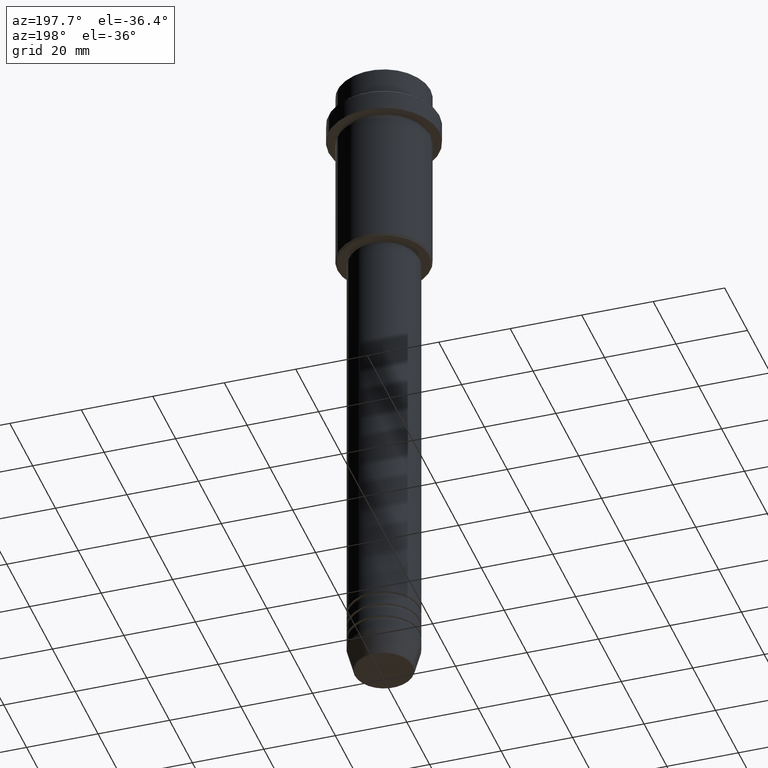
[diagram: clean part render]
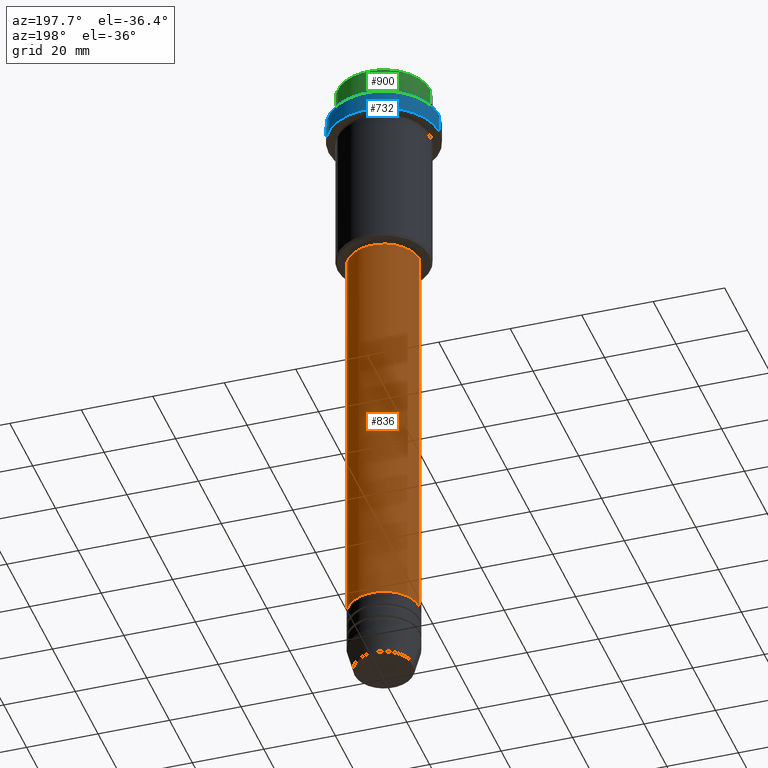
[diagram: same view with three faces highlighted in distinct colors, each labeled with its STEP entity id]
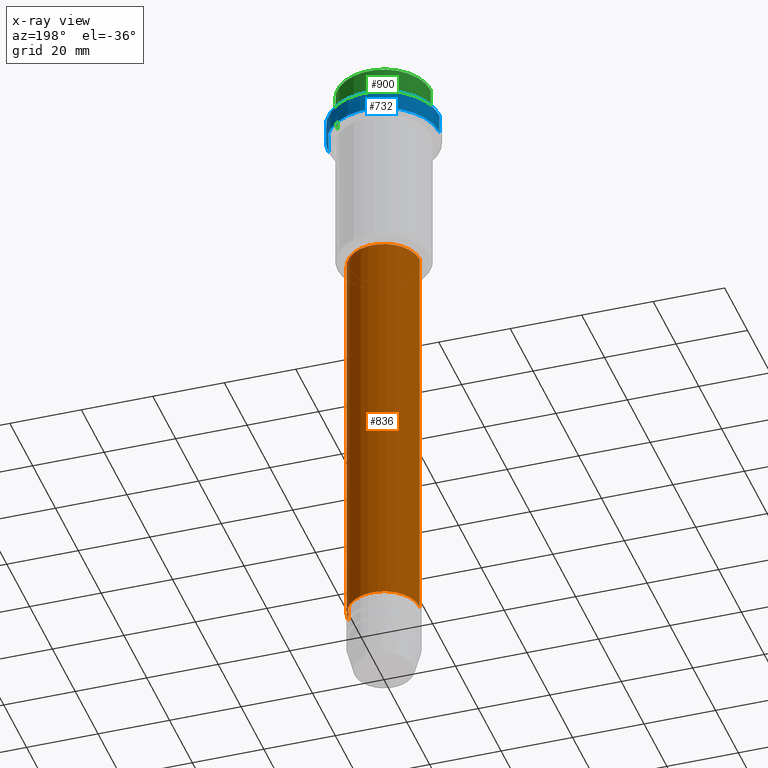
[diagram: x-ray of the same camera — body ghosted, the three highlighted faces saturated]
A machine part, auxiliary view with three faces highlighted in distinct colors.
The next image is the same camera in x-ray (body ghosted, the three faces saturated) — at least one of them is partly hidden behind the body in this view.
Their STEP definitions:

[orange] entity #836 — the highlighted cylindrical surface (partial cylindrical patch) has radius 10 mm, axis along (-0, -0, 1).
#87 = CARTESIAN_POINT ( 'NONE',  ( -10.00000000000000178, 1.224646799147353454E-15, 0.000000000000000000 ) ) ;
#165 = DIRECTION ( 'NONE',  ( -0.000000000000000000, -0.000000000000000000, 1.000000000000000000 ) ) ;
#176 = DIRECTION ( 'NONE',  ( -0.000000000000000000, -0.000000000000000000, 1.000000000000000000 ) ) ;
#210 = CARTESIAN_POINT ( 'NONE',  ( 0.000000000000000000, 0.000000000000000000, -55.99999999999999289 ) ) ;
#223 = CARTESIAN_POINT ( 'NONE',  ( 10.00000000000000178, 0.000000000000000000, 0.000000000000000000 ) ) ;
#224 = ORIENTED_EDGE ( 'NONE', *, *, #840, .T. ) ;
#234 = VERTEX_POINT ( 'NONE', #501 ) ;
#350 = VERTEX_POINT ( 'NONE', #1085 ) ;
#437 = EDGE_CURVE ( 'NONE', #1062, #234, #1139, .T. ) ;
#501 = CARTESIAN_POINT ( 'NONE',  ( -10.00000000000000000, 1.224646799147353256E-15, -170.9999999999998863 ) ) ;
#513 = VECTOR ( 'NONE', #769, 1000.000000000000000 ) ;
#531 = DIRECTION ( 'NONE',  ( -0.000000000000000000, -0.000000000000000000, 1.000000000000000000 ) ) ;
#546 = EDGE_CURVE ( 'NONE', #1062, #684, #1199, .T. ) ;
#632 = DIRECTION ( 'NONE',  ( 1.000000000000000000, 0.000000000000000000, 0.000000000000000000 ) ) ;
#642 = DIRECTION ( 'NONE',  ( -0.000000000000000000, -0.000000000000000000, 1.000000000000000000 ) ) ;
#656 = EDGE_LOOP ( 'NONE', ( #1023, #224, #1336, #1050 ) ) ;
#684 = VERTEX_POINT ( 'NONE', #921 ) ;
#710 = CARTESIAN_POINT ( 'NONE',  ( 0.000000000000000000, 0.000000000000000000, -170.9999999999998863 ) ) ;
#724 = CYLINDRICAL_SURFACE ( 'NONE', #964, 10.00000000000000178 ) ;
#741 = CARTESIAN_POINT ( 'NONE',  ( 0.000000000000000000, 0.000000000000000000, 0.000000000000000000 ) ) ;
#768 = CARTESIAN_POINT ( 'NONE',  ( 10.00000000000000000, 0.000000000000000000, -170.9999999999998863 ) ) ;
#769 = DIRECTION ( 'NONE',  ( -0.000000000000000000, -0.000000000000000000, 1.000000000000000000 ) ) ;
#836 = ADVANCED_FACE ( 'NONE', ( #867 ), #724, .T. ) ;
#840 = EDGE_CURVE ( 'NONE', #234, #350, #1375, .T. ) ;
#867 = FACE_OUTER_BOUND ( 'NONE', #656, .T. ) ;
#876 = CIRCLE ( 'NONE', #1395, 10.00000000000000178 ) ;
#921 = CARTESIAN_POINT ( 'NONE',  ( 10.00000000000000178, 0.000000000000000000, -55.99999999999999289 ) ) ;
#924 = EDGE_CURVE ( 'NONE', #684, #350, #876, .T. ) ;
#964 = AXIS2_PLACEMENT_3D ( 'NONE', #741, #531, #632 ) ;
#970 = DIRECTION ( 'NONE',  ( 1.000000000000000000, 0.000000000000000000, 0.000000000000000000 ) ) ;
#972 = DIRECTION ( 'NONE',  ( 1.000000000000000000, 0.000000000000000000, 0.000000000000000000 ) ) ;
#1023 = ORIENTED_EDGE ( 'NONE', *, *, #437, .T. ) ;
#1050 = ORIENTED_EDGE ( 'NONE', *, *, #546, .F. ) ;
#1062 = VERTEX_POINT ( 'NONE', #768 ) ;
#1085 = CARTESIAN_POINT ( 'NONE',  ( -10.00000000000000178, 1.224646799147353454E-15, -55.99999999999999289 ) ) ;
#1139 = CIRCLE ( 'NONE', #1279, 10.00000000000000000 ) ;
#1190 = VECTOR ( 'NONE', #176, 1000.000000000000000 ) ;
#1199 = LINE ( 'NONE', #223, #513 ) ;
#1279 = AXIS2_PLACEMENT_3D ( 'NONE', #710, #165, #972 ) ;
#1336 = ORIENTED_EDGE ( 'NONE', *, *, #924, .F. ) ;
#1375 = LINE ( 'NONE', #87, #1190 ) ;
#1395 = AXIS2_PLACEMENT_3D ( 'NONE', #210, #642, #970 ) ;

[blue] entity #732 — the highlighted cylindrical surface (partial cylindrical patch) has radius 15.5 mm, axis along (-0, -0, 1).
#47 = FACE_OUTER_BOUND ( 'NONE', #820, .T. ) ;
#72 = CARTESIAN_POINT ( 'NONE',  ( 15.50000000000000000, 0.000000000000000000, 0.000000000000000000 ) ) ;
#108 = EDGE_CURVE ( 'NONE', #749, #1380, #1266, .T. ) ;
#257 = AXIS2_PLACEMENT_3D ( 'NONE', #490, #907, #1355 ) ;
#311 = EDGE_CURVE ( 'NONE', #1379, #1380, #329, .T. ) ;
#329 = CIRCLE ( 'NONE', #1228, 15.50000000000000000 ) ;
#338 = CARTESIAN_POINT ( 'NONE',  ( -15.50000000000000000, 1.898202538678397557E-15, 0.000000000000000000 ) ) ;
#433 = DIRECTION ( 'NONE',  ( 1.000000000000000000, 0.000000000000000000, 0.000000000000000000 ) ) ;
#438 = EDGE_CURVE ( 'NONE', #749, #811, #485, .T. ) ;
#451 = ORIENTED_EDGE ( 'NONE', *, *, #311, .T. ) ;
#472 = CYLINDRICAL_SURFACE ( 'NONE', #257, 15.50000000000000000 ) ;
#485 = CIRCLE ( 'NONE', #1164, 15.50000000000000000 ) ;
#486 = ORIENTED_EDGE ( 'NONE', *, *, #438, .T. ) ;
#490 = CARTESIAN_POINT ( 'NONE',  ( 0.000000000000000000, 0.000000000000000000, 0.000000000000000000 ) ) ;
#527 = DIRECTION ( 'NONE',  ( -0.000000000000000000, -0.000000000000000000, 1.000000000000000000 ) ) ;
#537 = EDGE_CURVE ( 'NONE', #811, #1379, #1221, .T. ) ;
#558 = CARTESIAN_POINT ( 'NONE',  ( -15.50000000000000000, 1.898202538678397557E-15, -9.500000000000012434 ) ) ;
#567 = DIRECTION ( 'NONE',  ( -0.000000000000000000, -0.000000000000000000, 1.000000000000000000 ) ) ;
#635 = CARTESIAN_POINT ( 'NONE',  ( 0.000000000000000000, 0.000000000000000000, -15.00000000000000000 ) ) ;
#687 = VECTOR ( 'NONE', #862, 1000.000000000000000 ) ;
#723 = DIRECTION ( 'NONE',  ( 0.000000000000000000, 0.000000000000000000, -1.000000000000000000 ) ) ;
#732 = ADVANCED_FACE ( 'NONE', ( #47 ), #472, .T. ) ;
#749 = VERTEX_POINT ( 'NONE', #835 ) ;
#782 = CARTESIAN_POINT ( 'NONE',  ( 15.50000000000000000, 0.000000000000000000, -9.500000000000012434 ) ) ;
#811 = VERTEX_POINT ( 'NONE', #1240 ) ;
#820 = EDGE_LOOP ( 'NONE', ( #486, #1020, #451, #854 ) ) ;
#835 = CARTESIAN_POINT ( 'NONE',  ( 15.50000000000000000, 0.000000000000000000, -15.00000000000000000 ) ) ;
#854 = ORIENTED_EDGE ( 'NONE', *, *, #108, .F. ) ;
#862 = DIRECTION ( 'NONE',  ( -0.000000000000000000, -0.000000000000000000, 1.000000000000000000 ) ) ;
#895 = VECTOR ( 'NONE', #567, 1000.000000000000000 ) ;
#907 = DIRECTION ( 'NONE',  ( -0.000000000000000000, -0.000000000000000000, 1.000000000000000000 ) ) ;
#1020 = ORIENTED_EDGE ( 'NONE', *, *, #537, .T. ) ;
#1056 = CARTESIAN_POINT ( 'NONE',  ( 0.000000000000000000, 0.000000000000000000, -9.500000000000012434 ) ) ;
#1152 = DIRECTION ( 'NONE',  ( 1.000000000000000000, 0.000000000000000000, 0.000000000000000000 ) ) ;
#1164 = AXIS2_PLACEMENT_3D ( 'NONE', #635, #527, #433 ) ;
#1221 = LINE ( 'NONE', #338, #895 ) ;
#1228 = AXIS2_PLACEMENT_3D ( 'NONE', #1056, #723, #1152 ) ;
#1240 = CARTESIAN_POINT ( 'NONE',  ( -15.50000000000000000, 1.898202538678397557E-15, -15.00000000000000000 ) ) ;
#1266 = LINE ( 'NONE', #72, #687 ) ;
#1355 = DIRECTION ( 'NONE',  ( 1.000000000000000000, 0.000000000000000000, 0.000000000000000000 ) ) ;
#1379 = VERTEX_POINT ( 'NONE', #558 ) ;
#1380 = VERTEX_POINT ( 'NONE', #782 ) ;

[green] entity #900 — the highlighted cylindrical surface (partial cylindrical patch) has radius 13 mm, axis along (-0, -0, 1).
#60 = LINE ( 'NONE', #387, #1285 ) ;
#65 = EDGE_LOOP ( 'NONE', ( #624, #1328, #263, #1404 ) ) ;
#126 = CARTESIAN_POINT ( 'NONE',  ( -12.99999999999999822, 1.592040838891558898E-15, -0.4999999999999761302 ) ) ;
#161 = CARTESIAN_POINT ( 'NONE',  ( 0.000000000000000000, 0.000000000000000000, -0.4999999999999761302 ) ) ;
#192 = AXIS2_PLACEMENT_3D ( 'NONE', #161, #697, #817 ) ;
#198 = VERTEX_POINT ( 'NONE', #126 ) ;
#263 = ORIENTED_EDGE ( 'NONE', *, *, #692, .T. ) ;
#298 = CARTESIAN_POINT ( 'NONE',  ( 0.000000000000000000, 0.000000000000000000, 0.000000000000000000 ) ) ;
#321 = DIRECTION ( 'NONE',  ( -0.000000000000000000, -0.000000000000000000, 1.000000000000000000 ) ) ;
#367 = DIRECTION ( 'NONE',  ( -0.000000000000000000, -0.000000000000000000, 1.000000000000000000 ) ) ;
#373 = VERTEX_POINT ( 'NONE', #827 ) ;
#375 = CIRCLE ( 'NONE', #1140, 12.99999999999999822 ) ;
#387 = CARTESIAN_POINT ( 'NONE',  ( 12.99999999999999822, 0.000000000000000000, 0.000000000000000000 ) ) ;
#448 = CARTESIAN_POINT ( 'NONE',  ( 12.99999999999999822, 0.000000000000000000, -0.4999999999999761302 ) ) ;
#514 = CYLINDRICAL_SURFACE ( 'NONE', #693, 12.99999999999999822 ) ;
#560 = CARTESIAN_POINT ( 'NONE',  ( 12.99999999999999822, 0.000000000000000000, -7.999999999999998224 ) ) ;
#592 = CARTESIAN_POINT ( 'NONE',  ( 0.000000000000000000, 0.000000000000000000, -7.999999999999998224 ) ) ;
#622 = VECTOR ( 'NONE', #367, 1000.000000000000000 ) ;
#624 = ORIENTED_EDGE ( 'NONE', *, *, #663, .T. ) ;
#663 = EDGE_CURVE ( 'NONE', #974, #373, #375, .T. ) ;
#692 = EDGE_CURVE ( 'NONE', #198, #971, #715, .T. ) ;
#693 = AXIS2_PLACEMENT_3D ( 'NONE', #298, #321, #730 ) ;
#697 = DIRECTION ( 'NONE',  ( 0.000000000000000000, 0.000000000000000000, -1.000000000000000000 ) ) ;
#702 = LINE ( 'NONE', #807, #622 ) ;
#715 = CIRCLE ( 'NONE', #192, 12.99999999999999822 ) ;
#730 = DIRECTION ( 'NONE',  ( 1.000000000000000000, 0.000000000000000000, 0.000000000000000000 ) ) ;
#807 = CARTESIAN_POINT ( 'NONE',  ( -12.99999999999999822, 1.592040838891558898E-15, 0.000000000000000000 ) ) ;
#817 = DIRECTION ( 'NONE',  ( 1.000000000000000000, 0.000000000000000000, 0.000000000000000000 ) ) ;
#827 = CARTESIAN_POINT ( 'NONE',  ( -12.99999999999999822, 1.592040838891558898E-15, -7.999999999999998224 ) ) ;
#900 = ADVANCED_FACE ( 'NONE', ( #1292 ), #514, .T. ) ;
#971 = VERTEX_POINT ( 'NONE', #448 ) ;
#974 = VERTEX_POINT ( 'NONE', #560 ) ;
#1092 = EDGE_CURVE ( 'NONE', #373, #198, #702, .T. ) ;
#1094 = EDGE_CURVE ( 'NONE', #974, #971, #60, .T. ) ;
#1117 = DIRECTION ( 'NONE',  ( -0.000000000000000000, -0.000000000000000000, 1.000000000000000000 ) ) ;
#1140 = AXIS2_PLACEMENT_3D ( 'NONE', #592, #1117, #1263 ) ;
#1263 = DIRECTION ( 'NONE',  ( 1.000000000000000000, 0.000000000000000000, 0.000000000000000000 ) ) ;
#1285 = VECTOR ( 'NONE', #1347, 1000.000000000000000 ) ;
#1292 = FACE_OUTER_BOUND ( 'NONE', #65, .T. ) ;
#1328 = ORIENTED_EDGE ( 'NONE', *, *, #1092, .T. ) ;
#1347 = DIRECTION ( 'NONE',  ( -0.000000000000000000, -0.000000000000000000, 1.000000000000000000 ) ) ;
#1404 = ORIENTED_EDGE ( 'NONE', *, *, #1094, .F. ) ;